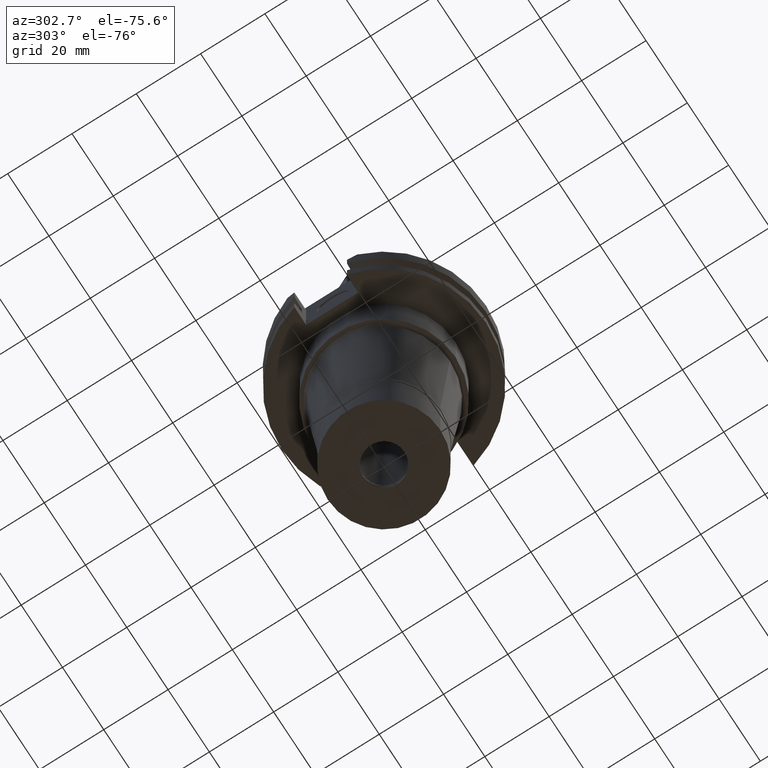
[diagram: clean part render]
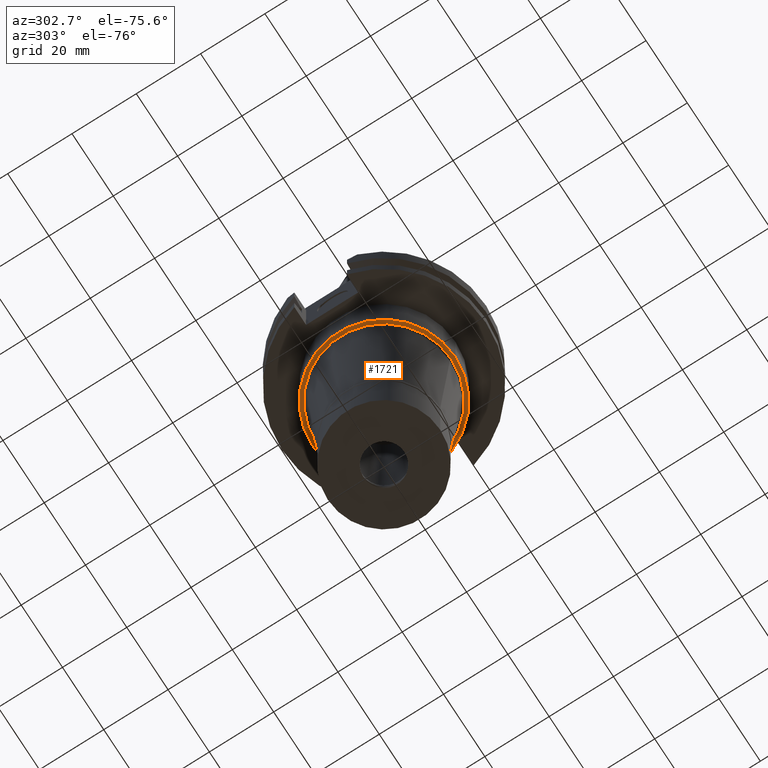
[diagram: same view with one face highlighted and labeled with its STEP entity id]
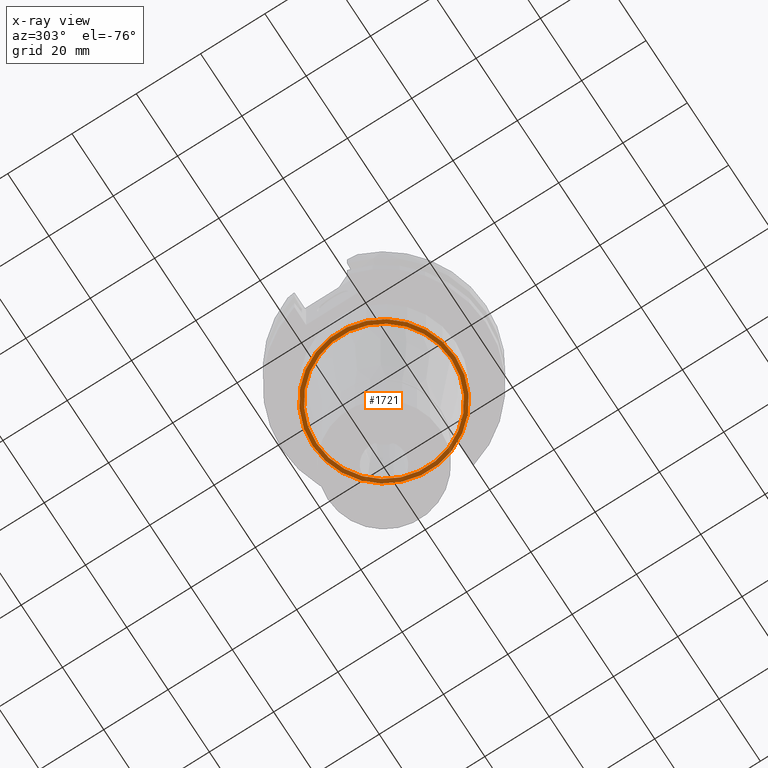
[diagram: x-ray of the same camera — body ghosted, the highlighted face saturated]
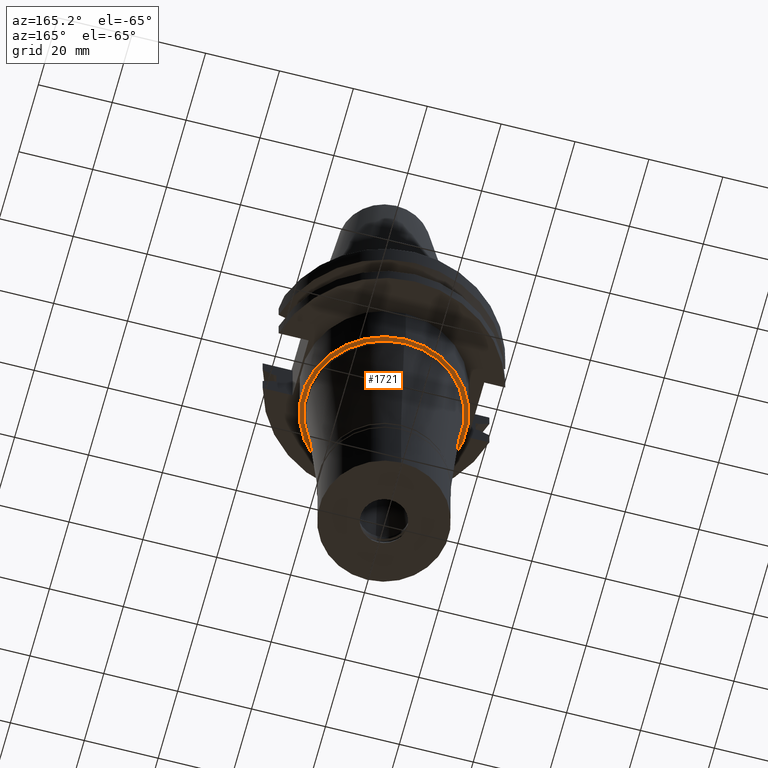
[diagram: same view with one face highlighted and labeled with its STEP entity id]
A machine part, auxiliary view. The second image highlights one B-rep face of the part: STEP entity #1721.
The next image is the same camera in x-ray: the body ghosted, the highlighted face saturated — about 31% of this face is hidden behind the body in this view.
A second angle (auxiliary view) of the same face is appended — the face is thin or edge-on in the first view.
In plain terms, the highlighted planar face has unit normal (0, 0, -1).
Its self-contained STEP definition (entity closure, byte-faithful):
#9 = DIRECTION ( 'NONE',  ( 0.0000000000000000000, -1.000000000000000000, 0.0000000000000000000 ) ) ;
#220 = FACE_OUTER_BOUND ( 'NONE', #1103, .T. ) ;
#232 = CARTESIAN_POINT ( 'NONE',  ( 0.0000000000000000000, 20.99286755117999803, -35.00000000000000000 ) ) ;
#238 = EDGE_CURVE ( 'NONE', #1504, #1861, #3306, .T. ) ;
#274 = CARTESIAN_POINT ( 'NONE',  ( 0.0000000000000000000, -22.22500000000000142, -35.00000000000000000 ) ) ;
#474 = CARTESIAN_POINT ( 'NONE',  ( 0.0000000000000000000, 0.0000000000000000000, -35.00000000000000000 ) ) ;
#499 = AXIS2_PLACEMENT_3D ( 'NONE', #684, #3330, #3048 ) ;
#560 = VERTEX_POINT ( 'NONE', #1643 ) ;
#684 = CARTESIAN_POINT ( 'NONE',  ( 0.0000000000000000000, 0.0000000000000000000, -35.00000000000000000 ) ) ;
#917 = VERTEX_POINT ( 'NONE', #232 ) ;
#941 = ORIENTED_EDGE ( 'NONE', *, *, #1125, .F. ) ;
#977 = PLANE ( 'NONE',  #2305 ) ;
#1039 = CIRCLE ( 'NONE', #499, 20.99286755117999803 ) ;
#1103 = EDGE_LOOP ( 'NONE', ( #2726, #2658 ) ) ;
#1125 = EDGE_CURVE ( 'NONE', #917, #560, #1039, .T. ) ;
#1405 = DIRECTION ( 'NONE',  ( 0.0000000000000000000, -1.000000000000000000, 0.0000000000000000000 ) ) ;
#1422 = EDGE_LOOP ( 'NONE', ( #941, #1853 ) ) ;
#1504 = VERTEX_POINT ( 'NONE', #3227 ) ;
#1526 = DIRECTION ( 'NONE',  ( 0.0000000000000000000, 0.0000000000000000000, -1.000000000000000000 ) ) ;
#1574 = DIRECTION ( 'NONE',  ( 0.0000000000000000000, -1.000000000000000000, 0.0000000000000000000 ) ) ;
#1643 = CARTESIAN_POINT ( 'NONE',  ( 0.0000000000000000000, -20.99286755117999803, -35.00000000000000000 ) ) ;
#1676 = CARTESIAN_POINT ( 'NONE',  ( 0.0000000000000000000, 2.160368802205999604E-14, -35.00000000000000000 ) ) ;
#1707 = CIRCLE ( 'NONE', #2475, 22.22500000000000142 ) ;
#1711 = AXIS2_PLACEMENT_3D ( 'NONE', #2549, #1526, #9 ) ;
#1721 = ADVANCED_FACE ( 'NONE', ( #220, #2557 ), #977, .T. ) ;
#1761 = AXIS2_PLACEMENT_3D ( 'NONE', #3082, #2044, #3346 ) ;
#1804 = DIRECTION ( 'NONE',  ( 0.0000000000000000000, 0.0000000000000000000, -1.000000000000000000 ) ) ;
#1853 = ORIENTED_EDGE ( 'NONE', *, *, #3083, .F. ) ;
#1861 = VERTEX_POINT ( 'NONE', #274 ) ;
#2044 = DIRECTION ( 'NONE',  ( 0.0000000000000000000, 0.0000000000000000000, 1.000000000000000000 ) ) ;
#2305 = AXIS2_PLACEMENT_3D ( 'NONE', #474, #1804, #1574 ) ;
#2447 = DIRECTION ( 'NONE',  ( 0.0000000000000000000, 0.0000000000000000000, 1.000000000000000000 ) ) ;
#2475 = AXIS2_PLACEMENT_3D ( 'NONE', #1676, #2447, #1405 ) ;
#2549 = CARTESIAN_POINT ( 'NONE',  ( 0.0000000000000000000, 0.0000000000000000000, -35.00000000000000000 ) ) ;
#2557 = FACE_BOUND ( 'NONE', #1422, .T. ) ;
#2658 = ORIENTED_EDGE ( 'NONE', *, *, #2679, .F. ) ;
#2679 = EDGE_CURVE ( 'NONE', #1861, #1504, #1707, .T. ) ;
#2726 = ORIENTED_EDGE ( 'NONE', *, *, #238, .F. ) ;
#2967 = CIRCLE ( 'NONE', #1711, 20.99286755117999803 ) ;
#3048 = DIRECTION ( 'NONE',  ( 0.0000000000000000000, 1.000000000000000000, 0.0000000000000000000 ) ) ;
#3082 = CARTESIAN_POINT ( 'NONE',  ( 0.0000000000000000000, 2.160368802205999604E-14, -35.00000000000000000 ) ) ;
#3083 = EDGE_CURVE ( 'NONE', #560, #917, #2967, .T. ) ;
#3227 = CARTESIAN_POINT ( 'NONE',  ( 0.0000000000000000000, 22.22500000000000142, -35.00000000000000000 ) ) ;
#3306 = CIRCLE ( 'NONE', #1761, 22.22500000000000142 ) ;
#3330 = DIRECTION ( 'NONE',  ( 0.0000000000000000000, 0.0000000000000000000, -1.000000000000000000 ) ) ;
#3346 = DIRECTION ( 'NONE',  ( 0.0000000000000000000, 1.000000000000000000, 0.0000000000000000000 ) ) ;